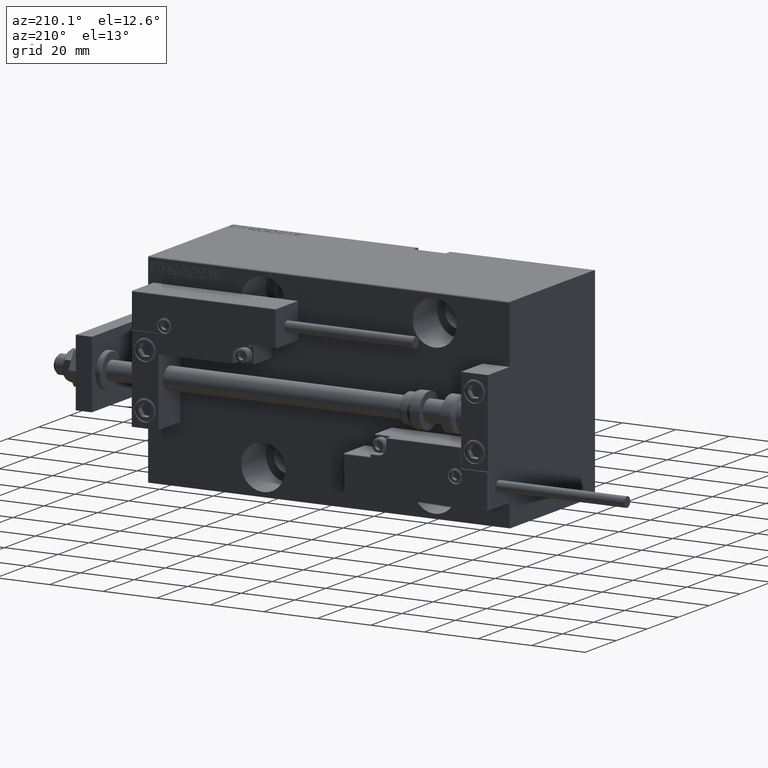
[diagram: clean part render]
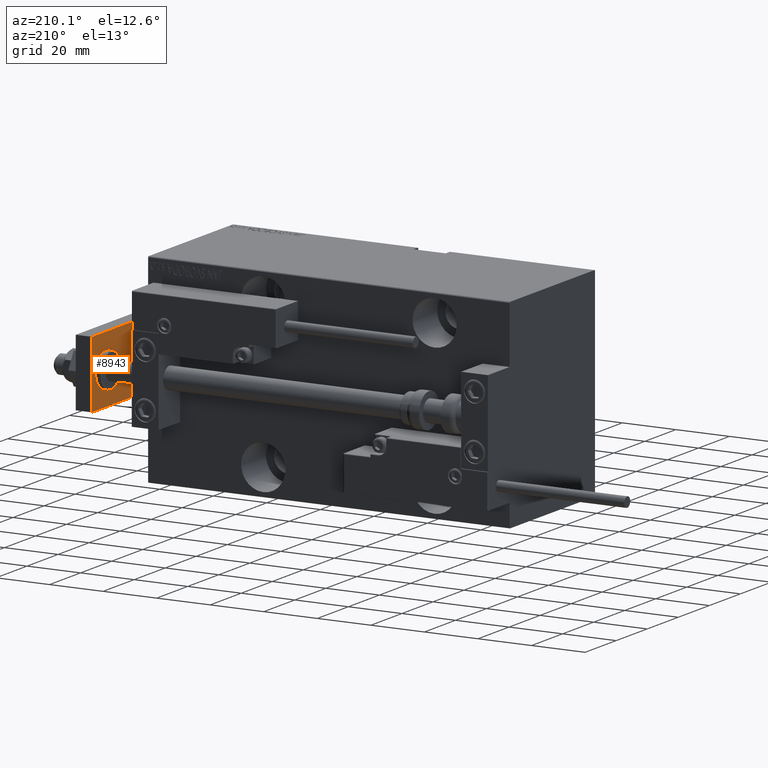
[diagram: same view with one face highlighted and labeled with its STEP entity id]
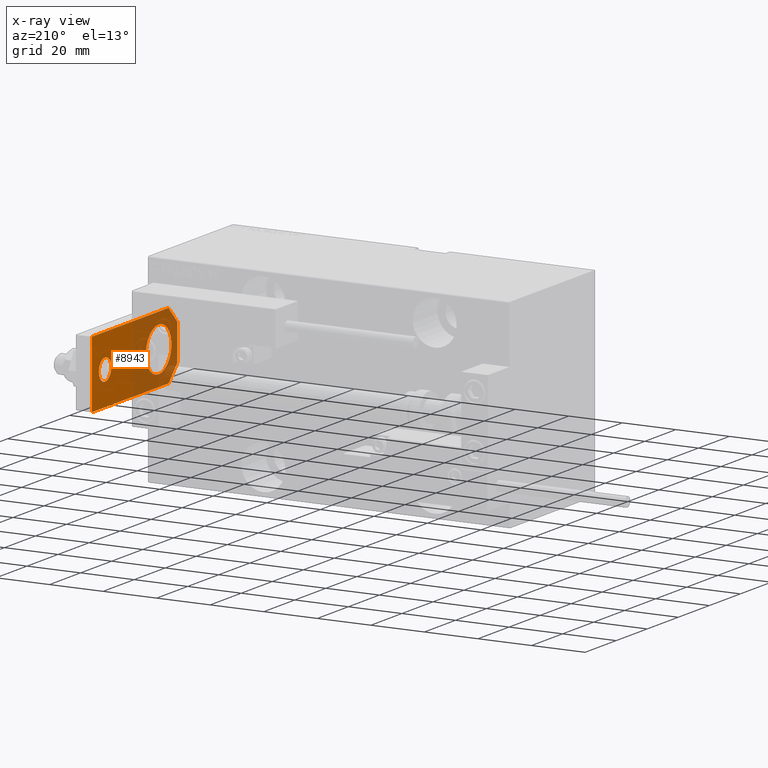
[diagram: x-ray of the same camera — body ghosted, the highlighted face saturated]
A machine part, auxiliary view. The second image highlights one B-rep face of the part: STEP entity #8943.
The next image is the same camera in x-ray: the body ghosted, the highlighted face saturated — about 45% of this face is hidden behind the body in this view.
In plain terms, the highlighted planar face has unit normal (1, 0, -0).
Its self-contained STEP definition (entity closure, byte-faithful):
#797 = FACE_BOUND ( 'NONE', #17011, .T. ) ;
#1042 = DIRECTION ( 'NONE',  ( 1.000000000000000000, 0.000000000000000000, 0.000000000000000000 ) ) ;
#1055 = DIRECTION ( 'NONE',  ( -9.462128050782584375E-17, -1.000000000000000000, 0.000000000000000000 ) ) ;
#1229 = VERTEX_POINT ( 'NONE', #3521 ) ;
#2309 = CARTESIAN_POINT ( 'NONE',  ( -6.840000000000012292, 4.814824860968089633E-32, 0.000000000000000000 ) ) ;
#2942 = VECTOR ( 'NONE', #28434, 1000.000000000000114 ) ;
#3521 = CARTESIAN_POINT ( 'NONE',  ( 4.000000000000000888, 46.50000000000000000, 0.000000000000000000 ) ) ;
#4069 = EDGE_CURVE ( 'NONE', #29184, #35235, #39441, .T. ) ;
#4833 = CARTESIAN_POINT ( 'NONE',  ( -12.49999999999999822, 55.00000000000000000, 0.000000000000000000 ) ) ;
#5039 = CARTESIAN_POINT ( 'NONE',  ( -12.49999999999999822, 55.00000000000000000, 0.000000000000000000 ) ) ;
#5617 = EDGE_CURVE ( 'NONE', #36182, #1229, #8938, .T. ) ;
#5631 = CARTESIAN_POINT ( 'NONE',  ( -9.629649721936179265E-32, 11.99999999999999645, 0.000000000000000000 ) ) ;
#6300 = CIRCLE ( 'NONE', #19160, 4.000000000000000888 ) ;
#6332 = CARTESIAN_POINT ( 'NONE',  ( 8.250000000000000000, 11.99999999999999822, 0.000000000000000000 ) ) ;
#6929 = CARTESIAN_POINT ( 'NONE',  ( -8.250000000000000000, 11.99999999999999645, 0.000000000000000000 ) ) ;
#7531 = DIRECTION ( 'NONE',  ( 1.000000000000000000, 0.000000000000000000, 0.000000000000000000 ) ) ;
#8617 = ORIENTED_EDGE ( 'NONE', *, *, #35838, .T. ) ;
#8857 = DIRECTION ( 'NONE',  ( 0.000000000000000000, 0.000000000000000000, 1.000000000000000000 ) ) ;
#8938 = CIRCLE ( 'NONE', #14581, 4.000000000000000888 ) ;
#8943 = ADVANCED_FACE ( 'NONE', ( #19941, #35305, #797 ), #31521, .F. ) ;
#8986 = EDGE_CURVE ( 'NONE', #35235, #9269, #21872, .T. ) ;
#9206 = DIRECTION ( 'NONE',  ( -1.000000000000000000, 0.000000000000000000, 0.000000000000000000 ) ) ;
#9269 = VERTEX_POINT ( 'NONE', #18768 ) ;
#9923 = VERTEX_POINT ( 'NONE', #6332 ) ;
#10625 = CIRCLE ( 'NONE', #23504, 8.250000000000000000 ) ;
#10790 = VECTOR ( 'NONE', #45106, 1000.000000000000000 ) ;
#11386 = CARTESIAN_POINT ( 'NONE',  ( 12.50000000000000000, 55.00000000000000000, 0.000000000000000000 ) ) ;
#11781 = ORIENTED_EDGE ( 'NONE', *, *, #17105, .T. ) ;
#12485 = EDGE_CURVE ( 'NONE', #25626, #9923, #10625, .T. ) ;
#13949 = EDGE_LOOP ( 'NONE', ( #48566, #16580 ) ) ;
#14376 = VERTEX_POINT ( 'NONE', #23030 ) ;
#14581 = AXIS2_PLACEMENT_3D ( 'NONE', #26675, #29935, #7531 ) ;
#15002 = DIRECTION ( 'NONE',  ( -6.308085367188389994E-17, 1.000000000000000000, 0.000000000000000000 ) ) ;
#15007 = CARTESIAN_POINT ( 'NONE',  ( -6.840000000000012292, 4.814824860968089633E-32, 0.000000000000000000 ) ) ;
#15060 = ORIENTED_EDGE ( 'NONE', *, *, #12485, .T. ) ;
#16159 = AXIS2_PLACEMENT_3D ( 'NONE', #27753, #18946, #34288 ) ;
#16580 = ORIENTED_EDGE ( 'NONE', *, *, #25788, .T. ) ;
#17011 = EDGE_LOOP ( 'NONE', ( #15060, #11781 ) ) ;
#17105 = EDGE_CURVE ( 'NONE', #9923, #25626, #39917, .T. ) ;
#17198 = DIRECTION ( 'NONE',  ( 0.000000000000000000, 0.000000000000000000, 1.000000000000000000 ) ) ;
#17751 = EDGE_CURVE ( 'NONE', #20499, #14376, #39766, .T. ) ;
#18114 = VECTOR ( 'NONE', #15002, 1000.000000000000000 ) ;
#18436 = VECTOR ( 'NONE', #30652, 1000.000000000000000 ) ;
#18768 = CARTESIAN_POINT ( 'NONE',  ( -12.50000000000000355, 5.660000000000005471, 0.000000000000000000 ) ) ;
#18946 = DIRECTION ( 'NONE',  ( -0.000000000000000000, 0.000000000000000000, 1.000000000000000000 ) ) ;
#19160 = AXIS2_PLACEMENT_3D ( 'NONE', #25016, #17198, #32563 ) ;
#19941 = FACE_OUTER_BOUND ( 'NONE', #45262, .T. ) ;
#20335 = LINE ( 'NONE', #35682, #18436 ) ;
#20499 = VERTEX_POINT ( 'NONE', #27697 ) ;
#21486 = DIRECTION ( 'NONE',  ( 1.000000000000000000, 0.000000000000000000, 0.000000000000000000 ) ) ;
#21872 = LINE ( 'NONE', #4833, #44285 ) ;
#23030 = CARTESIAN_POINT ( 'NONE',  ( 6.839999999999998970, 4.814824860968089633E-32, 0.000000000000000000 ) ) ;
#23504 = AXIS2_PLACEMENT_3D ( 'NONE', #36043, #8857, #1042 ) ;
#23662 = ORIENTED_EDGE ( 'NONE', *, *, #38553, .F. ) ;
#24579 = CARTESIAN_POINT ( 'NONE',  ( 12.50000000000000000, 55.00000000000000000, 0.000000000000000000 ) ) ;
#25016 = CARTESIAN_POINT ( 'NONE',  ( -1.432611055310774642E-16, 46.50000000000000000, 0.000000000000000000 ) ) ;
#25626 = VERTEX_POINT ( 'NONE', #6929 ) ;
#25788 = EDGE_CURVE ( 'NONE', #1229, #36182, #6300, .T. ) ;
#26258 = ORIENTED_EDGE ( 'NONE', *, *, #27237, .F. ) ;
#26675 = CARTESIAN_POINT ( 'NONE',  ( -1.432611055310774642E-16, 46.50000000000000000, 0.000000000000000000 ) ) ;
#27237 = EDGE_CURVE ( 'NONE', #45465, #14376, #20335, .T. ) ;
#27697 = CARTESIAN_POINT ( 'NONE',  ( 12.50000000000000355, 5.659999999999991260, 0.000000000000000000 ) ) ;
#27753 = CARTESIAN_POINT ( 'NONE',  ( 0.000000000000000000, 0.000000000000000000, 0.000000000000000000 ) ) ;
#28434 = DIRECTION ( 'NONE',  ( -0.7071067811865483499, -0.7071067811865465735, -0.000000000000000000 ) ) ;
#29184 = VERTEX_POINT ( 'NONE', #11386 ) ;
#29935 = DIRECTION ( 'NONE',  ( 0.000000000000000000, 0.000000000000000000, 1.000000000000000000 ) ) ;
#30652 = DIRECTION ( 'NONE',  ( 1.000000000000000000, 0.000000000000000000, 0.000000000000000000 ) ) ;
#31521 = PLANE ( 'NONE',  #16159 ) ;
#32563 = DIRECTION ( 'NONE',  ( 1.000000000000000000, 0.000000000000000000, 0.000000000000000000 ) ) ;
#33387 = CARTESIAN_POINT ( 'NONE',  ( 12.50000000000000355, 4.814824860968089633E-32, 0.000000000000000000 ) ) ;
#34288 = DIRECTION ( 'NONE',  ( 1.000000000000000000, 0.000000000000000000, 0.000000000000000000 ) ) ;
#35235 = VERTEX_POINT ( 'NONE', #5039 ) ;
#35305 = FACE_BOUND ( 'NONE', #13949, .T. ) ;
#35682 = CARTESIAN_POINT ( 'NONE',  ( -12.50000000000000355, 4.814824860968089633E-32, 0.000000000000000000 ) ) ;
#35838 = EDGE_CURVE ( 'NONE', #45465, #9269, #44604, .T. ) ;
#35971 = ORIENTED_EDGE ( 'NONE', *, *, #8986, .F. ) ;
#36043 = CARTESIAN_POINT ( 'NONE',  ( -9.629649721936179265E-32, 11.99999999999999645, 0.000000000000000000 ) ) ;
#36182 = VERTEX_POINT ( 'NONE', #47584 ) ;
#38553 = EDGE_CURVE ( 'NONE', #20499, #29184, #45216, .T. ) ;
#39275 = CARTESIAN_POINT ( 'NONE',  ( 12.50000000000000355, 5.659999999999991260, 0.000000000000000000 ) ) ;
#39441 = LINE ( 'NONE', #24579, #45839 ) ;
#39766 = LINE ( 'NONE', #39275, #2942 ) ;
#39888 = DIRECTION ( 'NONE',  ( 0.000000000000000000, 0.000000000000000000, 1.000000000000000000 ) ) ;
#39917 = CIRCLE ( 'NONE', #47127, 8.250000000000000000 ) ;
#44285 = VECTOR ( 'NONE', #1055, 1000.000000000000000 ) ;
#44604 = LINE ( 'NONE', #2309, #10790 ) ;
#44991 = ORIENTED_EDGE ( 'NONE', *, *, #4069, .F. ) ;
#45106 = DIRECTION ( 'NONE',  ( -0.7071067811865467956, 0.7071067811865483499, -0.000000000000000000 ) ) ;
#45216 = LINE ( 'NONE', #33387, #18114 ) ;
#45262 = EDGE_LOOP ( 'NONE', ( #26258, #8617, #35971, #44991, #23662, #49617 ) ) ;
#45465 = VERTEX_POINT ( 'NONE', #15007 ) ;
#45839 = VECTOR ( 'NONE', #9206, 1000.000000000000000 ) ;
#47127 = AXIS2_PLACEMENT_3D ( 'NONE', #5631, #39888, #21486 ) ;
#47584 = CARTESIAN_POINT ( 'NONE',  ( -4.000000000000000888, 46.50000000000000000, 0.000000000000000000 ) ) ;
#48566 = ORIENTED_EDGE ( 'NONE', *, *, #5617, .T. ) ;
#49617 = ORIENTED_EDGE ( 'NONE', *, *, #17751, .T. ) ;